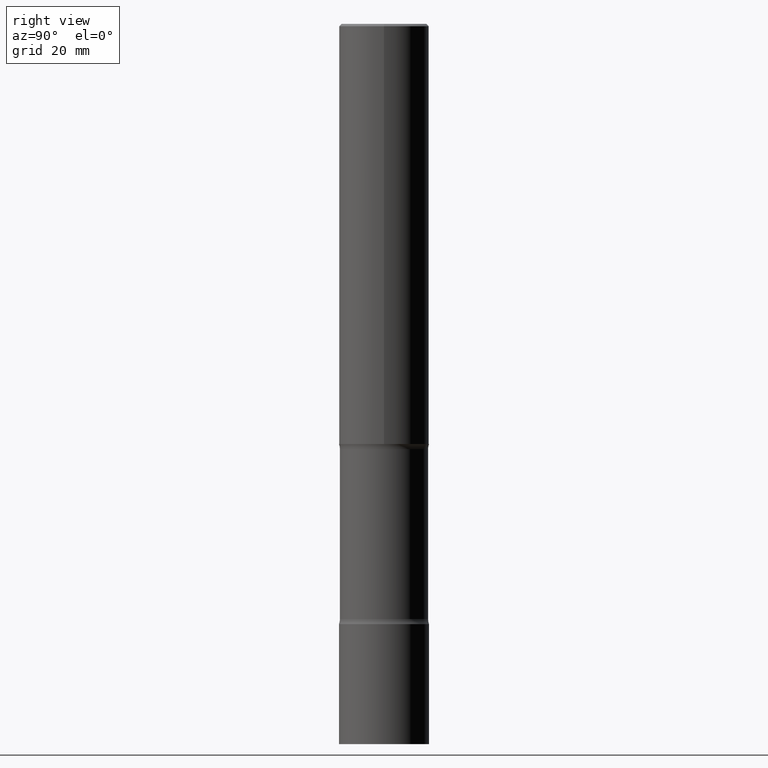
[diagram: clean part render]
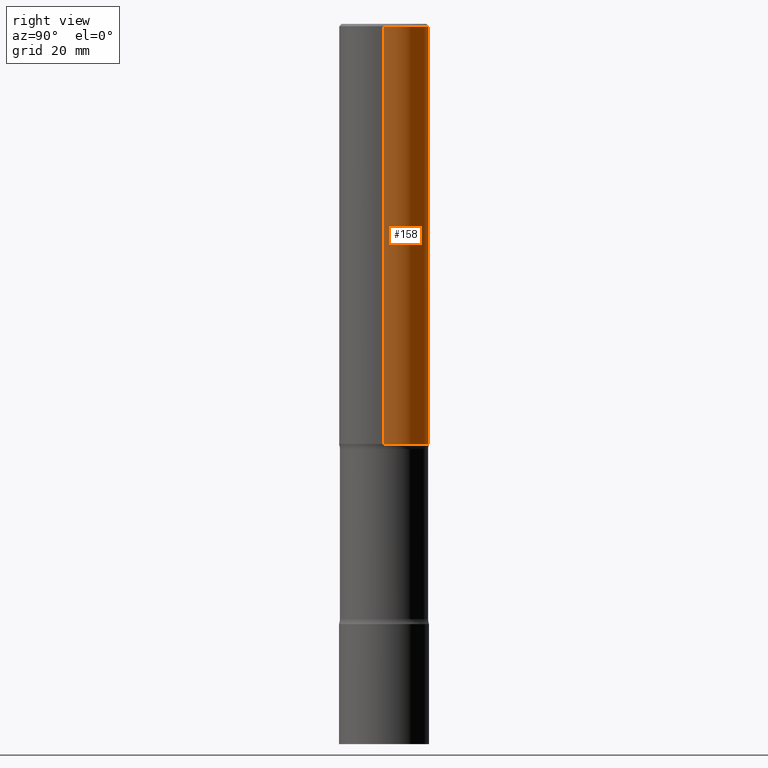
[diagram: same view with one face highlighted and labeled with its STEP entity id]
A machine part, right view. The second image highlights one B-rep face of the part: STEP entity #158.
In plain terms, the highlighted cylindrical surface (partial cylindrical patch) has radius 9.525 mm, axis along (-0, 0, 1).
Its self-contained STEP definition (entity closure, byte-faithful):
#21 = CIRCLE ( 'NONE', #421, 0.3750000000000000555 ) ;
#60 = CARTESIAN_POINT ( 'NONE',  ( 0.3750000000000000555, -1.483879569008336409E-14, -3.500000000000000888 ) ) ;
#78 = ORIENTED_EDGE ( 'NONE', *, *, #111, .T. ) ;
#94 = LINE ( 'NONE', #400, #354 ) ;
#111 = EDGE_CURVE ( 'NONE', #222, #112, #94, .T. ) ;
#112 = VERTEX_POINT ( 'NONE', #366 ) ;
#134 = CARTESIAN_POINT ( 'NONE',  ( -0.3750000000000000555, -3.480471897263558651E-15, -3.500000000000000888 ) ) ;
#140 = FACE_OUTER_BOUND ( 'NONE', #257, .T. ) ;
#141 = LINE ( 'NONE', #346, #341 ) ;
#150 = ORIENTED_EDGE ( 'NONE', *, *, #316, .T. ) ;
#158 = ADVANCED_FACE ( 'NONE', ( #140 ), #183, .T. ) ;
#167 = DIRECTION ( 'NONE',  ( -2.445468806185136597E-29, 3.491481338843145583E-15, 1.000000000000000000 ) ) ;
#169 = CARTESIAN_POINT ( 'NONE',  ( 0.3749999999999997780, -2.642516375941186056E-15, -0.02000000000000006981 ) ) ;
#183 = CYLINDRICAL_SURFACE ( 'NONE', #339, 0.3749999999999998890 ) ;
#192 = VERTEX_POINT ( 'NONE', #169 ) ;
#200 = DIRECTION ( 'NONE',  ( -2.445468806185136877E-29, 3.491481338843145188E-15, 1.000000000000000000 ) ) ;
#214 = DIRECTION ( 'NONE',  ( -2.445468806185136877E-29, 3.491481338843145188E-15, 1.000000000000000000 ) ) ;
#221 = ORIENTED_EDGE ( 'NONE', *, *, #428, .F. ) ;
#222 = VERTEX_POINT ( 'NONE', #134 ) ;
#250 = CARTESIAN_POINT ( 'NONE',  ( 4.890937612370289799E-31, -6.982962677686315028E-17, -0.02000000000000006981 ) ) ;
#257 = EDGE_LOOP ( 'NONE', ( #150, #78, #263, #221 ) ) ;
#263 = ORIENTED_EDGE ( 'NONE', *, *, #393, .F. ) ;
#280 = CARTESIAN_POINT ( 'NONE',  ( 8.559140821647979210E-29, -1.222018468595101250E-14, -3.500000000000000888 ) ) ;
#297 = DIRECTION ( 'NONE',  ( -2.445468806185136597E-29, 3.491481338843145583E-15, 1.000000000000000000 ) ) ;
#304 = DIRECTION ( 'NONE',  ( 1.000000000000000000, -6.982962677686265922E-15, 0.000000000000000000 ) ) ;
#316 = EDGE_CURVE ( 'NONE', #462, #222, #21, .T. ) ;
#337 = DIRECTION ( 'NONE',  ( 1.000000000000000000, -6.982962677686266711E-15, 4.876176775795935793E-29 ) ) ;
#339 = AXIS2_PLACEMENT_3D ( 'NONE', #376, #495, #337 ) ;
#341 = VECTOR ( 'NONE', #214, 39.37007874015748143 ) ;
#346 = CARTESIAN_POINT ( 'NONE',  ( 0.3749999999999998890, -2.618611004132349228E-15, 1.828566290923475362E-29 ) ) ;
#354 = VECTOR ( 'NONE', #200, 39.37007874015748143 ) ;
#366 = CARTESIAN_POINT ( 'NONE',  ( -0.3749999999999997780, 2.548781377355484746E-15, -0.02000000000000006981 ) ) ;
#373 = AXIS2_PLACEMENT_3D ( 'NONE', #250, #297, #304 ) ;
#376 = CARTESIAN_POINT ( 'NONE',  ( 0.000000000000000000, 0.000000000000000000, 0.000000000000000000 ) ) ;
#393 = EDGE_CURVE ( 'NONE', #192, #112, #503, .T. ) ;
#400 = CARTESIAN_POINT ( 'NONE',  ( -0.3749999999999998890, 2.664535259100374908E-15, -1.844600658845589038E-29 ) ) ;
#406 = DIRECTION ( 'NONE',  ( 1.000000000000000000, -6.982962677686266711E-15, 0.000000000000000000 ) ) ;
#421 = AXIS2_PLACEMENT_3D ( 'NONE', #280, #167, #406 ) ;
#428 = EDGE_CURVE ( 'NONE', #462, #192, #141, .T. ) ;
#462 = VERTEX_POINT ( 'NONE', #60 ) ;
#495 = DIRECTION ( 'NONE',  ( -2.445468806185136597E-29, 3.491481338843145583E-15, 1.000000000000000000 ) ) ;
#503 = CIRCLE ( 'NONE', #373, 0.3749999999999997780 ) ;